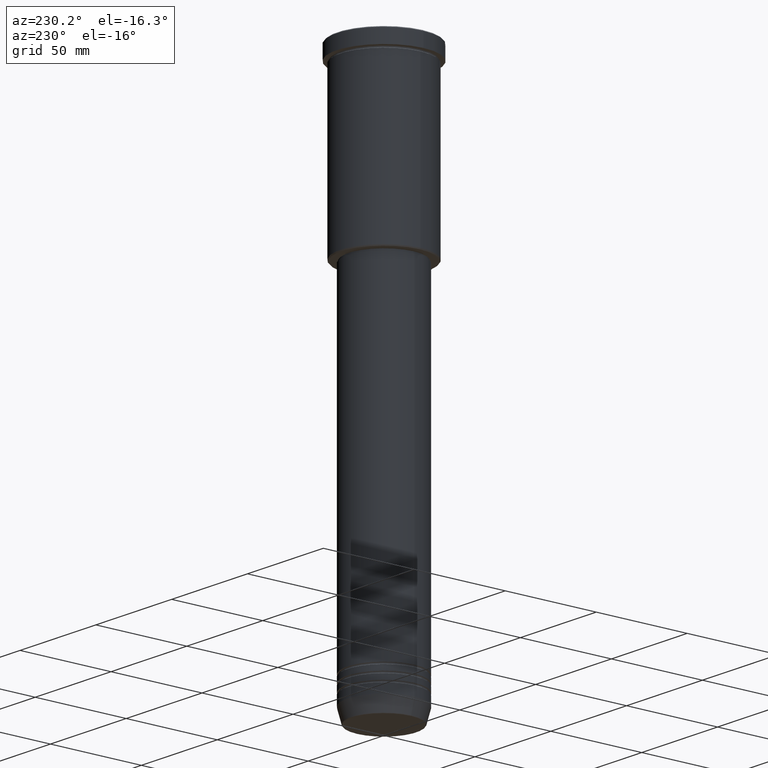
[diagram: clean part render]
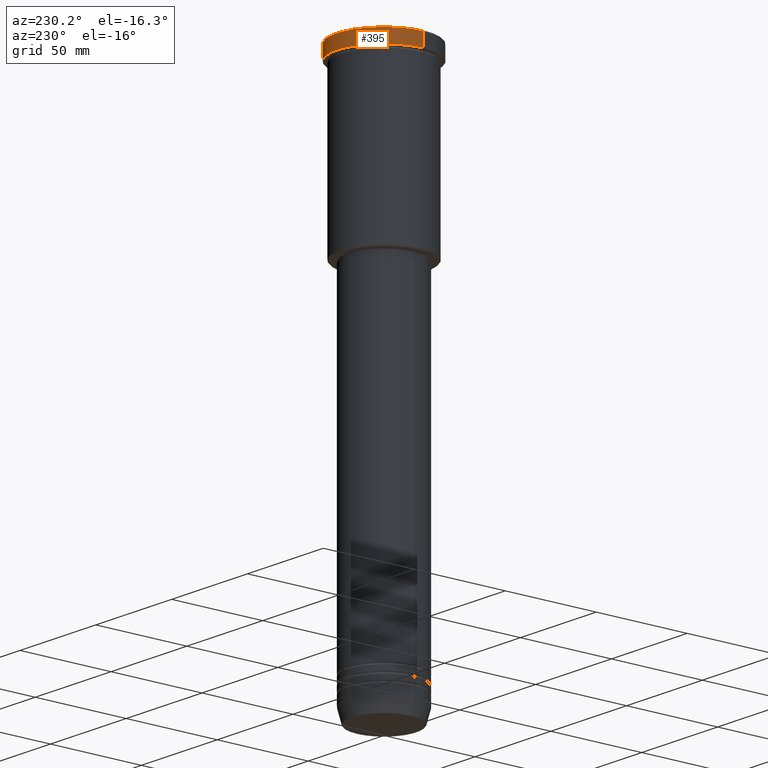
[diagram: same view with one face highlighted and labeled with its STEP entity id]
A machine part, auxiliary view. The second image highlights one B-rep face of the part: STEP entity #395.
In plain terms, the highlighted cylindrical surface (partial cylindrical patch) has radius 26 mm, axis along (-0, -0, 1).
Its self-contained STEP definition (entity closure, byte-faithful):
#18 = DIRECTION ( 'NONE',  ( -0.000000000000000000, -0.000000000000000000, 1.000000000000000000 ) ) ;
#23 = VECTOR ( 'NONE', #18, 1000.000000000000000 ) ;
#24 = DIRECTION ( 'NONE',  ( -0.000000000000000000, -0.000000000000000000, 1.000000000000000000 ) ) ;
#109 = EDGE_CURVE ( 'NONE', #470, #505, #294, .T. ) ;
#111 = CARTESIAN_POINT ( 'NONE',  ( 0.000000000000000000, 0.000000000000000000, -7.999999999999992895 ) ) ;
#118 = CARTESIAN_POINT ( 'NONE',  ( 26.00000000000000000, 0.000000000000000000, 0.000000000000000000 ) ) ;
#119 = DIRECTION ( 'NONE',  ( -0.000000000000000000, -0.000000000000000000, 1.000000000000000000 ) ) ;
#177 = CARTESIAN_POINT ( 'NONE',  ( -26.00000000000000000, 3.184081677783118191E-15, -0.4999999999999692468 ) ) ;
#205 = ORIENTED_EDGE ( 'NONE', *, *, #690, .F. ) ;
#230 = FACE_OUTER_BOUND ( 'NONE', #1086, .T. ) ;
#289 = CARTESIAN_POINT ( 'NONE',  ( 0.000000000000000000, 0.000000000000000000, 0.000000000000000000 ) ) ;
#292 = CARTESIAN_POINT ( 'NONE',  ( -26.00000000000000000, 3.184081677783118191E-15, -7.999999999999992895 ) ) ;
#294 = LINE ( 'NONE', #749, #23 ) ;
#308 = CARTESIAN_POINT ( 'NONE',  ( 0.000000000000000000, 0.000000000000000000, -0.4999999999999692468 ) ) ;
#323 = CIRCLE ( 'NONE', #888, 26.00000000000000000 ) ;
#391 = DIRECTION ( 'NONE',  ( 1.000000000000000000, 0.000000000000000000, 0.000000000000000000 ) ) ;
#395 = ADVANCED_FACE ( 'NONE', ( #230 ), #669, .T. ) ;
#402 = EDGE_CURVE ( 'NONE', #984, #470, #977, .T. ) ;
#470 = VERTEX_POINT ( 'NONE', #292 ) ;
#480 = VECTOR ( 'NONE', #24, 1000.000000000000000 ) ;
#505 = VERTEX_POINT ( 'NONE', #177 ) ;
#548 = VERTEX_POINT ( 'NONE', #905 ) ;
#582 = DIRECTION ( 'NONE',  ( 0.000000000000000000, 0.000000000000000000, -1.000000000000000000 ) ) ;
#609 = EDGE_CURVE ( 'NONE', #505, #548, #323, .T. ) ;
#658 = DIRECTION ( 'NONE',  ( -0.000000000000000000, -0.000000000000000000, 1.000000000000000000 ) ) ;
#669 = CYLINDRICAL_SURFACE ( 'NONE', #1101, 26.00000000000000000 ) ;
#690 = EDGE_CURVE ( 'NONE', #984, #548, #851, .T. ) ;
#697 = ORIENTED_EDGE ( 'NONE', *, *, #609, .T. ) ;
#749 = CARTESIAN_POINT ( 'NONE',  ( -26.00000000000000000, 3.184081677783118191E-15, 0.000000000000000000 ) ) ;
#803 = ORIENTED_EDGE ( 'NONE', *, *, #109, .T. ) ;
#839 = CARTESIAN_POINT ( 'NONE',  ( 26.00000000000000000, 0.000000000000000000, -7.999999999999992895 ) ) ;
#851 = LINE ( 'NONE', #118, #480 ) ;
#888 = AXIS2_PLACEMENT_3D ( 'NONE', #308, #582, #1118 ) ;
#905 = CARTESIAN_POINT ( 'NONE',  ( 26.00000000000000000, 0.000000000000000000, -0.4999999999999692468 ) ) ;
#911 = AXIS2_PLACEMENT_3D ( 'NONE', #111, #658, #391 ) ;
#922 = DIRECTION ( 'NONE',  ( 1.000000000000000000, 0.000000000000000000, 0.000000000000000000 ) ) ;
#950 = ORIENTED_EDGE ( 'NONE', *, *, #402, .T. ) ;
#977 = CIRCLE ( 'NONE', #911, 26.00000000000000000 ) ;
#984 = VERTEX_POINT ( 'NONE', #839 ) ;
#1086 = EDGE_LOOP ( 'NONE', ( #950, #803, #697, #205 ) ) ;
#1101 = AXIS2_PLACEMENT_3D ( 'NONE', #289, #119, #922 ) ;
#1118 = DIRECTION ( 'NONE',  ( 1.000000000000000000, 0.000000000000000000, 0.000000000000000000 ) ) ;